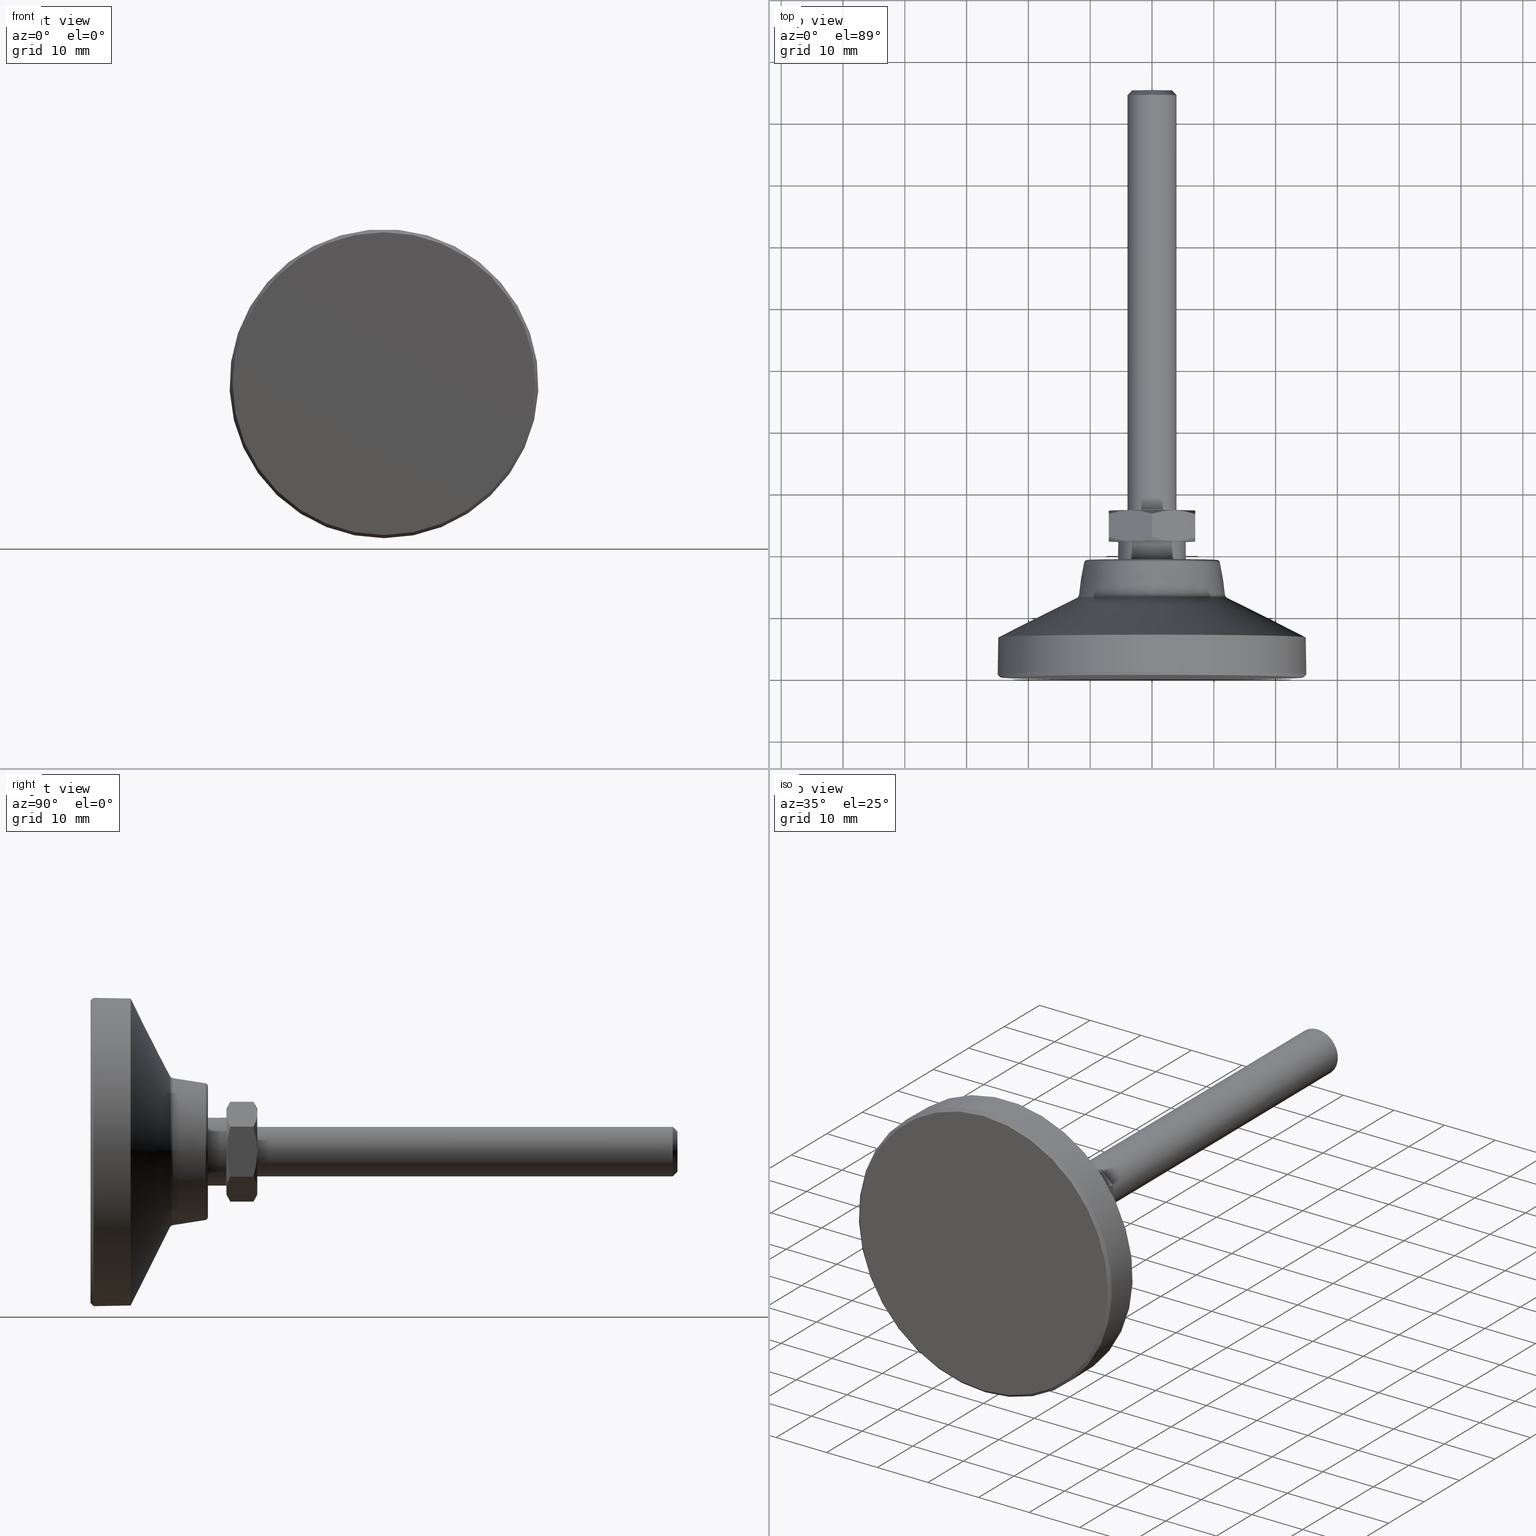
[diagram: canonical four-view strip — front | top / right | iso, engineering-drawing reading convention]
A machine part, canonical four-view strip (front | top / right | iso — engineering-drawing reading convention). The complete STEP part file that produces these views, byte-faithful:
ISO-10303-21;
HEADER;
/* Generated by software containing ST-Developer
 * from STEP Tools, Inc. (www.steptools.com) 
 */

FILE_DESCRIPTION(
/* description */ ('aaa'),
/* implementation_level */ '2;1');

FILE_NAME(
/* name */ 
'Q:\\Catalogo\\2_Accessori Dierre\\Per Download Web e catalogo cartace
o\\CATALOGO PIEDI E SOSTEGNI\\PAGINA 46\\CPDSN0000028.stp',
/* time_stamp */ '2018-11-09T11:11:46+01:00',
/* author */ ('fzagni'),
/* organization */ (''),
/* preprocessor_version */ 'ST-DEVELOPER v16.1',
/* originating_system */ 'Autodesk Inventor 2016',
/* authorisation */ '');

FILE_SCHEMA (('AUTOMOTIVE_DESIGN { 1 0 10303 214 3 1 1 }'));
ENDSEC;

DATA;
#10=MECHANICAL_DESIGN_GEOMETRIC_PRESENTATION_REPRESENTATION('',(#62,#63),
#859);
#11=DIMENSIONAL_EXPONENTS(0.,0.,0.,0.,0.,0.,0.);
#12=(
CONVERSION_BASED_UNIT('degree',#13)
NAMED_UNIT(#11)
PLANE_ANGLE_UNIT()
);
#13=PLANE_ANGLE_MEASURE_WITH_UNIT(PLANE_ANGLE_MEASURE(0.01745329252),#862);
#14=ITEM_DEFINED_TRANSFORMATION($,$,#466,#530);
#15=ITEM_DEFINED_TRANSFORMATION($,$,#486,#531);
#16=(
REPRESENTATION_RELATIONSHIP($,$,#871,#873)
REPRESENTATION_RELATIONSHIP_WITH_TRANSFORMATION(#14)
SHAPE_REPRESENTATION_RELATIONSHIP()
);
#17=(
REPRESENTATION_RELATIONSHIP($,$,#872,#873)
REPRESENTATION_RELATIONSHIP_WITH_TRANSFORMATION(#15)
SHAPE_REPRESENTATION_RELATIONSHIP()
);
#18=CONTEXT_DEPENDENT_SHAPE_REPRESENTATION(#16,#869);
#19=CONTEXT_DEPENDENT_SHAPE_REPRESENTATION(#17,#870);
#20=NEXT_ASSEMBLY_USAGE_OCCURRENCE('!958510002371!!!:1',
'!958510002371!!!:1','!958510002371!!!:1',#877,#875,
'!958510002371!!!:1');
#21=NEXT_ASSEMBLY_USAGE_OCCURRENCE('!958510002372!!!:2',
'!958510002372!!!:2','!958510002372!!!:2',#877,#876,
'!958510002372!!!:2');
#22=LINE('',#720,#28);
#23=LINE('',#729,#29);
#24=LINE('',#747,#30);
#25=LINE('',#773,#31);
#26=LINE('',#788,#32);
#27=LINE('',#797,#33);
#28=VECTOR('',#584,3.7495704353214);
#29=VECTOR('',#585,3.7495704353214);
#30=VECTOR('',#588,3.7495704353214);
#31=VECTOR('',#599,3.7495704353214);
#32=VECTOR('',#606,3.7495704353214);
#33=VECTOR('',#607,3.7495704353214);
#34=(
BOUNDED_CURVE()
B_SPLINE_CURVE(2,(#703,#704,#705),.UNSPECIFIED.,.F.,.F.)
B_SPLINE_CURVE_WITH_KNOTS((3,3),(-2.39990703391285,-1.70144723055342),
 .UNSPECIFIED.)
CURVE()
GEOMETRIC_REPRESENTATION_ITEM()
RATIONAL_B_SPLINE_CURVE((1.61721543938395,1.74230748895809,1.74230748895809))
REPRESENTATION_ITEM('')
);
#35=(
BOUNDED_CURVE()
B_SPLINE_CURVE(2,(#707,#708,#709),.UNSPECIFIED.,.F.,.F.)
B_SPLINE_CURVE_WITH_KNOTS((3,3),(1.00298742719398,1.70144723055341),
 .UNSPECIFIED.)
CURVE()
GEOMETRIC_REPRESENTATION_ITEM()
RATIONAL_B_SPLINE_CURVE((1.61721543938395,1.74230748895809,1.74230748895809))
REPRESENTATION_ITEM('')
);
#36=(
BOUNDED_CURVE()
B_SPLINE_CURVE(2,(#716,#717,#718),.UNSPECIFIED.,.F.,.F.)
B_SPLINE_CURVE_WITH_KNOTS((3,3),(-1.70144723055341,-1.00298742719398),
 .UNSPECIFIED.)
CURVE()
GEOMETRIC_REPRESENTATION_ITEM()
RATIONAL_B_SPLINE_CURVE((1.74230748895809,1.74230748895809,1.61721543938395))
REPRESENTATION_ITEM('')
);
#37=(
BOUNDED_CURVE()
B_SPLINE_CURVE(2,(#722,#723,#724),.UNSPECIFIED.,.F.,.F.)
B_SPLINE_CURVE_WITH_KNOTS((3,3),(1.00298742719398,1.70144723055341),
 .UNSPECIFIED.)
CURVE()
GEOMETRIC_REPRESENTATION_ITEM()
RATIONAL_B_SPLINE_CURVE((1.61721543938395,1.74230748895809,1.74230748895809))
REPRESENTATION_ITEM('')
);
#38=(
BOUNDED_CURVE()
B_SPLINE_CURVE(2,(#726,#727,#728),.UNSPECIFIED.,.F.,.F.)
B_SPLINE_CURVE_WITH_KNOTS((3,3),(1.70144723055341,2.39990703391284),
 .UNSPECIFIED.)
CURVE()
GEOMETRIC_REPRESENTATION_ITEM()
RATIONAL_B_SPLINE_CURVE((1.74230748895809,1.74230748895809,1.61721543938395))
REPRESENTATION_ITEM('')
);
#39=(
BOUNDED_CURVE()
B_SPLINE_CURVE(2,(#733,#734,#735),.UNSPECIFIED.,.F.,.F.)
B_SPLINE_CURVE_WITH_KNOTS((3,3),(1.00298742719398,1.70144723055341),
 .UNSPECIFIED.)
CURVE()
GEOMETRIC_REPRESENTATION_ITEM()
RATIONAL_B_SPLINE_CURVE((1.61721543938395,1.7423074889581,1.7423074889581))
REPRESENTATION_ITEM('')
);
#40=(
BOUNDED_CURVE()
B_SPLINE_CURVE(2,(#736,#737,#738),.UNSPECIFIED.,.F.,.F.)
B_SPLINE_CURVE_WITH_KNOTS((3,3),(1.70144723055341,2.39990703391285),
 .UNSPECIFIED.)
CURVE()
GEOMETRIC_REPRESENTATION_ITEM()
RATIONAL_B_SPLINE_CURVE((1.7423074889581,1.7423074889581,1.61721543938395))
REPRESENTATION_ITEM('')
);
#41=(
BOUNDED_CURVE()
B_SPLINE_CURVE(2,(#740,#741,#742),.UNSPECIFIED.,.F.,.F.)
B_SPLINE_CURVE_WITH_KNOTS((3,3),(1.00298742719398,1.70144723055341),
 .UNSPECIFIED.)
CURVE()
GEOMETRIC_REPRESENTATION_ITEM()
RATIONAL_B_SPLINE_CURVE((1.61721543938395,1.74230748895809,1.74230748895809))
REPRESENTATION_ITEM('')
);
#42=(
BOUNDED_CURVE()
B_SPLINE_CURVE(2,(#744,#745,#746),.UNSPECIFIED.,.F.,.F.)
B_SPLINE_CURVE_WITH_KNOTS((3,3),(1.70144723055341,2.39990703391284),
 .UNSPECIFIED.)
CURVE()
GEOMETRIC_REPRESENTATION_ITEM()
RATIONAL_B_SPLINE_CURVE((1.74230748895809,1.74230748895809,1.61721543938395))
REPRESENTATION_ITEM('')
);
#43=(
BOUNDED_CURVE()
B_SPLINE_CURVE(2,(#753,#754,#755),.UNSPECIFIED.,.F.,.F.)
B_SPLINE_CURVE_WITH_KNOTS((3,3),(1.70144723055341,2.39990703391284),
 .UNSPECIFIED.)
CURVE()
GEOMETRIC_REPRESENTATION_ITEM()
RATIONAL_B_SPLINE_CURVE((1.74230748895809,1.74230748895809,1.61721543938395))
REPRESENTATION_ITEM('')
);
#44=(
BOUNDED_CURVE()
B_SPLINE_CURVE(2,(#757,#758,#759),.UNSPECIFIED.,.F.,.F.)
B_SPLINE_CURVE_WITH_KNOTS((3,3),(-1.70144723055341,-1.00298742719398),
 .UNSPECIFIED.)
CURVE()
GEOMETRIC_REPRESENTATION_ITEM()
RATIONAL_B_SPLINE_CURVE((1.74230748895809,1.74230748895809,1.61721543938395))
REPRESENTATION_ITEM('')
);
#45=(
BOUNDED_CURVE()
B_SPLINE_CURVE(2,(#764,#765,#766),.UNSPECIFIED.,.F.,.F.)
B_SPLINE_CURVE_WITH_KNOTS((3,3),(1.00298742719398,1.70144723055341),
 .UNSPECIFIED.)
CURVE()
GEOMETRIC_REPRESENTATION_ITEM()
RATIONAL_B_SPLINE_CURVE((1.61721543938395,1.74230748895809,1.74230748895809))
REPRESENTATION_ITEM('')
);
#46=(
BOUNDED_CURVE()
B_SPLINE_CURVE(2,(#767,#768,#769),.UNSPECIFIED.,.F.,.F.)
B_SPLINE_CURVE_WITH_KNOTS((3,3),(1.70144723055341,2.39990703391284),
 .UNSPECIFIED.)
CURVE()
GEOMETRIC_REPRESENTATION_ITEM()
RATIONAL_B_SPLINE_CURVE((1.74230748895809,1.74230748895809,1.61721543938395))
REPRESENTATION_ITEM('')
);
#47=(
BOUNDED_CURVE()
B_SPLINE_CURVE(2,(#770,#771,#772),.UNSPECIFIED.,.F.,.F.)
B_SPLINE_CURVE_WITH_KNOTS((3,3),(1.00298742719398,1.70144723055341),
 .UNSPECIFIED.)
CURVE()
GEOMETRIC_REPRESENTATION_ITEM()
RATIONAL_B_SPLINE_CURVE((1.61721543938395,1.74230748895809,1.74230748895809))
REPRESENTATION_ITEM('')
);
#48=(
BOUNDED_CURVE()
B_SPLINE_CURVE(2,(#780,#781,#782),.UNSPECIFIED.,.F.,.F.)
B_SPLINE_CURVE_WITH_KNOTS((3,3),(1.00298742719398,1.70144723055341),
 .UNSPECIFIED.)
CURVE()
GEOMETRIC_REPRESENTATION_ITEM()
RATIONAL_B_SPLINE_CURVE((1.61721543938395,1.7423074889581,1.7423074889581))
REPRESENTATION_ITEM('')
);
#49=(
BOUNDED_CURVE()
B_SPLINE_CURVE(2,(#784,#785,#786),.UNSPECIFIED.,.F.,.F.)
B_SPLINE_CURVE_WITH_KNOTS((3,3),(1.70144723055341,2.39990703391285),
 .UNSPECIFIED.)
CURVE()
GEOMETRIC_REPRESENTATION_ITEM()
RATIONAL_B_SPLINE_CURVE((1.7423074889581,1.7423074889581,1.61721543938395))
REPRESENTATION_ITEM('')
);
#50=(
BOUNDED_CURVE()
B_SPLINE_CURVE(2,(#790,#791,#792),.UNSPECIFIED.,.F.,.F.)
B_SPLINE_CURVE_WITH_KNOTS((3,3),(1.00298742719398,1.70144723055341),
 .UNSPECIFIED.)
CURVE()
GEOMETRIC_REPRESENTATION_ITEM()
RATIONAL_B_SPLINE_CURVE((1.61721543938395,1.74230748895809,1.74230748895809))
REPRESENTATION_ITEM('')
);
#51=(
BOUNDED_CURVE()
B_SPLINE_CURVE(2,(#794,#795,#796),.UNSPECIFIED.,.F.,.F.)
B_SPLINE_CURVE_WITH_KNOTS((3,3),(1.70144723055341,2.39990703391284),
 .UNSPECIFIED.)
CURVE()
GEOMETRIC_REPRESENTATION_ITEM()
RATIONAL_B_SPLINE_CURVE((1.74230748895809,1.74230748895809,1.61721543938395))
REPRESENTATION_ITEM('')
);
#52=(
BOUNDED_CURVE()
B_SPLINE_CURVE(2,(#799,#800,#801),.UNSPECIFIED.,.F.,.F.)
B_SPLINE_CURVE_WITH_KNOTS((3,3),(-1.70144723055342,-1.00298742719398),
 .UNSPECIFIED.)
CURVE()
GEOMETRIC_REPRESENTATION_ITEM()
RATIONAL_B_SPLINE_CURVE((1.74230748895809,1.74230748895809,1.61721543938395))
REPRESENTATION_ITEM('')
);
#53=(
BOUNDED_CURVE()
B_SPLINE_CURVE(2,(#805,#806,#807),.UNSPECIFIED.,.F.,.F.)
B_SPLINE_CURVE_WITH_KNOTS((3,3),(1.00298742719398,1.70144723055341),
 .UNSPECIFIED.)
CURVE()
GEOMETRIC_REPRESENTATION_ITEM()
RATIONAL_B_SPLINE_CURVE((1.61721543938395,1.74230748895809,1.74230748895809))
REPRESENTATION_ITEM('')
);
#54=(
BOUNDED_CURVE()
B_SPLINE_CURVE(2,(#808,#809,#810),.UNSPECIFIED.,.F.,.F.)
B_SPLINE_CURVE_WITH_KNOTS((3,3),(1.70144723055341,2.39990703391285),
 .UNSPECIFIED.)
CURVE()
GEOMETRIC_REPRESENTATION_ITEM()
RATIONAL_B_SPLINE_CURVE((1.74230748895809,1.74230748895809,1.61721543938395))
REPRESENTATION_ITEM('')
);
#55=(
BOUNDED_CURVE()
B_SPLINE_CURVE(2,(#811,#812,#813),.UNSPECIFIED.,.F.,.F.)
B_SPLINE_CURVE_WITH_KNOTS((3,3),(-2.39990703391285,-1.70144723055341),
 .UNSPECIFIED.)
CURVE()
GEOMETRIC_REPRESENTATION_ITEM()
RATIONAL_B_SPLINE_CURVE((1.61721543938395,1.7423074889581,1.7423074889581))
REPRESENTATION_ITEM('')
);
#56=(
BOUNDED_CURVE()
B_SPLINE_CURVE(2,(#816,#817,#818),.UNSPECIFIED.,.F.,.F.)
B_SPLINE_CURVE_WITH_KNOTS((3,3),(1.00298742719398,1.70144723055341),
 .UNSPECIFIED.)
CURVE()
GEOMETRIC_REPRESENTATION_ITEM()
RATIONAL_B_SPLINE_CURVE((1.61721543938395,1.7423074889581,1.7423074889581))
REPRESENTATION_ITEM('')
);
#57=(
BOUNDED_CURVE()
B_SPLINE_CURVE(2,(#819,#820,#821),.UNSPECIFIED.,.F.,.F.)
B_SPLINE_CURVE_WITH_KNOTS((3,3),(1.70144723055341,2.39990703391285),
 .UNSPECIFIED.)
CURVE()
GEOMETRIC_REPRESENTATION_ITEM()
RATIONAL_B_SPLINE_CURVE((1.7423074889581,1.7423074889581,1.61721543938395))
REPRESENTATION_ITEM('')
);
#58=SHAPE_REPRESENTATION_RELATIONSHIP('SRR','None',#871,#60);
#59=SHAPE_REPRESENTATION_RELATIONSHIP('SRR','None',#872,#61);
#60=ADVANCED_BREP_SHAPE_REPRESENTATION('',(#64),#856);
#61=ADVANCED_BREP_SHAPE_REPRESENTATION('',(#65),#857);
#62=STYLED_ITEM('',(#890),#64);
#63=STYLED_ITEM('',(#891),#65);
#64=MANIFOLD_SOLID_BREP('_Levelling elements LS.A-50-14-M8x68 (0)_P1',#464);
#65=MANIFOLD_SOLID_BREP('_Levelling elements LS.A-50-14-M8x68 (0)_P2',#465);
#66=CONICAL_SURFACE('',#477,11.0668038275658,0.15707963267949);
#67=CONICAL_SURFACE('',#481,12.2943067828115,1.10544951728791);
#68=CONICAL_SURFACE('',#483,24.8952696104307,0.0174532925199432);
#69=CONICAL_SURFACE('',#485,25.,0.785398163397448);
#70=CONICAL_SURFACE('',#487,7.,1.0471975511966);
#71=CONICAL_SURFACE('',#493,11.3301270189222,1.0471975511966);
#72=CONICAL_SURFACE('',#495,11.3301270189222,1.0471975511966);
#73=CONICAL_SURFACE('',#501,7.,1.0471975511966);
#74=CONICAL_SURFACE('',#505,7.,1.0471975511966);
#75=CONICAL_SURFACE('',#512,7.,1.0471975511966);
#76=CONICAL_SURFACE('',#515,3.233,0.785398163397455);
#77=CONICAL_SURFACE('',#516,7.,1.0471975511966);
#78=CONICAL_SURFACE('',#523,11.3301270189222,1.0471975511966);
#79=CONICAL_SURFACE('',#524,11.3301270189222,1.0471975511966);
#80=CONICAL_SURFACE('',#525,11.3301270189222,1.0471975511966);
#81=CONICAL_SURFACE('',#526,7.,1.0471975511966);
#82=CONICAL_SURFACE('',#528,11.3301270189222,1.0471975511966);
#83=TOROIDAL_SURFACE('',#475,10.5729596572683,0.5);
#84=TOROIDAL_SURFACE('',#479,12.6308563530279,0.749999999999994);
#85=SPHERICAL_SURFACE('',#472,7.);
#86=SPHERICAL_SURFACE('',#498,7.);
#87=CYLINDRICAL_SURFACE('',#470,7.);
#88=CYLINDRICAL_SURFACE('',#513,4.);
#89=CYLINDRICAL_SURFACE('',#527,5.5);
#90=FACE_BOUND('',#139,.T.);
#91=FACE_BOUND('',#141,.T.);
#92=FACE_BOUND('',#145,.T.);
#93=FACE_BOUND('',#147,.T.);
#94=FACE_BOUND('',#149,.T.);
#95=FACE_BOUND('',#151,.T.);
#96=FACE_BOUND('',#153,.T.);
#97=FACE_BOUND('',#155,.T.);
#98=FACE_BOUND('',#170,.T.);
#99=FACE_BOUND('',#173,.T.);
#100=FACE_BOUND('',#175,.T.);
#101=FACE_BOUND('',#178,.T.);
#102=FACE_BOUND('',#184,.T.);
#103=FACE_OUTER_BOUND('',#138,.T.);
#104=FACE_OUTER_BOUND('',#140,.T.);
#105=FACE_OUTER_BOUND('',#142,.T.);
#106=FACE_OUTER_BOUND('',#143,.T.);
#107=FACE_OUTER_BOUND('',#144,.T.);
#108=FACE_OUTER_BOUND('',#146,.T.);
#109=FACE_OUTER_BOUND('',#148,.T.);
#110=FACE_OUTER_BOUND('',#150,.T.);
#111=FACE_OUTER_BOUND('',#152,.T.);
#112=FACE_OUTER_BOUND('',#154,.T.);
#113=FACE_OUTER_BOUND('',#156,.T.);
#114=FACE_OUTER_BOUND('',#157,.T.);
#115=FACE_OUTER_BOUND('',#158,.T.);
#116=FACE_OUTER_BOUND('',#159,.T.);
#117=FACE_OUTER_BOUND('',#160,.T.);
#118=FACE_OUTER_BOUND('',#161,.T.);
#119=FACE_OUTER_BOUND('',#162,.T.);
#120=FACE_OUTER_BOUND('',#163,.T.);
#121=FACE_OUTER_BOUND('',#164,.T.);
#122=FACE_OUTER_BOUND('',#165,.T.);
#123=FACE_OUTER_BOUND('',#166,.T.);
#124=FACE_OUTER_BOUND('',#167,.T.);
#125=FACE_OUTER_BOUND('',#168,.T.);
#126=FACE_OUTER_BOUND('',#169,.T.);
#127=FACE_OUTER_BOUND('',#171,.T.);
#128=FACE_OUTER_BOUND('',#172,.T.);
#129=FACE_OUTER_BOUND('',#174,.T.);
#130=FACE_OUTER_BOUND('',#176,.T.);
#131=FACE_OUTER_BOUND('',#177,.T.);
#132=FACE_OUTER_BOUND('',#179,.T.);
#133=FACE_OUTER_BOUND('',#180,.T.);
#134=FACE_OUTER_BOUND('',#181,.T.);
#135=FACE_OUTER_BOUND('',#182,.T.);
#136=FACE_OUTER_BOUND('',#183,.T.);
#137=FACE_OUTER_BOUND('',#185,.T.);
#138=EDGE_LOOP('',(#306));
#139=EDGE_LOOP('',(#307));
#140=EDGE_LOOP('',(#308));
#141=EDGE_LOOP('',(#309));
#142=EDGE_LOOP('',(#310));
#143=EDGE_LOOP('',(#311));
#144=EDGE_LOOP('',(#312));
#145=EDGE_LOOP('',(#313));
#146=EDGE_LOOP('',(#314));
#147=EDGE_LOOP('',(#315));
#148=EDGE_LOOP('',(#316));
#149=EDGE_LOOP('',(#317));
#150=EDGE_LOOP('',(#318));
#151=EDGE_LOOP('',(#319));
#152=EDGE_LOOP('',(#320));
#153=EDGE_LOOP('',(#321));
#154=EDGE_LOOP('',(#322));
#155=EDGE_LOOP('',(#323));
#156=EDGE_LOOP('',(#324,#325,#326));
#157=EDGE_LOOP('',(#327));
#158=EDGE_LOOP('',(#328,#329,#330,#331,#332,#333));
#159=EDGE_LOOP('',(#334,#335,#336,#337,#338,#339));
#160=EDGE_LOOP('',(#340,#341,#342));
#161=EDGE_LOOP('',(#343,#344,#345));
#162=EDGE_LOOP('',(#346,#347,#348,#349,#350,#351));
#163=EDGE_LOOP('',(#352));
#164=EDGE_LOOP('',(#353,#354,#355,#356,#357,#358));
#165=EDGE_LOOP('',(#359,#360,#361));
#166=EDGE_LOOP('',(#362,#363,#364,#365,#366,#367));
#167=EDGE_LOOP('',(#368,#369,#370,#371,#372,#373));
#168=EDGE_LOOP('',(#374,#375,#376));
#169=EDGE_LOOP('',(#377,#378,#379,#380,#381,#382));
#170=EDGE_LOOP('',(#383));
#171=EDGE_LOOP('',(#384,#385,#386));
#172=EDGE_LOOP('',(#387));
#173=EDGE_LOOP('',(#388));
#174=EDGE_LOOP('',(#389));
#175=EDGE_LOOP('',(#390));
#176=EDGE_LOOP('',(#391,#392,#393));
#177=EDGE_LOOP('',(#394,#395,#396,#397,#398,#399));
#178=EDGE_LOOP('',(#400));
#179=EDGE_LOOP('',(#401,#402,#403));
#180=EDGE_LOOP('',(#404,#405,#406));
#181=EDGE_LOOP('',(#407,#408,#409));
#182=EDGE_LOOP('',(#410,#411,#412));
#183=EDGE_LOOP('',(#413));
#184=EDGE_LOOP('',(#414));
#185=EDGE_LOOP('',(#415,#416,#417));
#186=CIRCLE('',#468,10.5729596572683);
#187=CIRCLE('',#469,7.);
#188=CIRCLE('',#471,7.);
#189=CIRCLE('',#474,24.5);
#190=CIRCLE('',#476,11.0668038275658);
#191=CIRCLE('',#478,11.8900900975816);
#192=CIRCLE('',#480,12.2943067828115);
#193=CIRCLE('',#482,24.8952696104307);
#194=CIRCLE('',#484,25.);
#195=CIRCLE('',#488,7.);
#196=CIRCLE('',#490,3.233);
#197=CIRCLE('',#494,7.);
#198=CIRCLE('',#496,7.);
#199=CIRCLE('',#499,5.5);
#200=CIRCLE('',#502,7.);
#201=CIRCLE('',#506,7.);
#202=CIRCLE('',#508,7.);
#203=CIRCLE('',#509,7.);
#204=CIRCLE('',#510,7.);
#205=CIRCLE('',#511,4.);
#206=CIRCLE('',#514,4.);
#207=CIRCLE('',#518,7.);
#208=CIRCLE('',#519,7.);
#209=CIRCLE('',#520,7.);
#210=CIRCLE('',#521,7.);
#211=CIRCLE('',#522,5.5);
#212=VERTEX_POINT('',#672);
#213=VERTEX_POINT('',#674);
#214=VERTEX_POINT('',#677);
#215=VERTEX_POINT('',#681);
#216=VERTEX_POINT('',#684);
#217=VERTEX_POINT('',#687);
#218=VERTEX_POINT('',#690);
#219=VERTEX_POINT('',#693);
#220=VERTEX_POINT('',#696);
#221=VERTEX_POINT('',#701);
#222=VERTEX_POINT('',#702);
#223=VERTEX_POINT('',#706);
#224=VERTEX_POINT('',#712);
#225=VERTEX_POINT('',#715);
#226=VERTEX_POINT('',#719);
#227=VERTEX_POINT('',#721);
#228=VERTEX_POINT('',#725);
#229=VERTEX_POINT('',#731);
#230=VERTEX_POINT('',#732);
#231=VERTEX_POINT('',#739);
#232=VERTEX_POINT('',#743);
#233=VERTEX_POINT('',#751);
#234=VERTEX_POINT('',#752);
#235=VERTEX_POINT('',#756);
#236=VERTEX_POINT('',#762);
#237=VERTEX_POINT('',#763);
#238=VERTEX_POINT('',#775);
#239=VERTEX_POINT('',#778);
#240=VERTEX_POINT('',#779);
#241=VERTEX_POINT('',#783);
#242=VERTEX_POINT('',#787);
#243=VERTEX_POINT('',#789);
#244=VERTEX_POINT('',#793);
#245=VERTEX_POINT('',#804);
#246=VERTEX_POINT('',#815);
#247=VERTEX_POINT('',#828);
#248=VERTEX_POINT('',#832);
#249=VERTEX_POINT('',#841);
#250=EDGE_CURVE('',#212,#212,#186,.T.);
#251=EDGE_CURVE('',#213,#213,#187,.F.);
#252=EDGE_CURVE('',#214,#214,#188,.T.);
#253=EDGE_CURVE('',#215,#215,#189,.T.);
#254=EDGE_CURVE('',#216,#216,#190,.T.);
#255=EDGE_CURVE('',#217,#217,#191,.T.);
#256=EDGE_CURVE('',#218,#218,#192,.T.);
#257=EDGE_CURVE('',#219,#219,#193,.T.);
#258=EDGE_CURVE('',#220,#220,#194,.T.);
#259=EDGE_CURVE('',#221,#222,#34,.T.);
#260=EDGE_CURVE('',#223,#221,#35,.F.);
#261=EDGE_CURVE('',#223,#222,#195,.T.);
#262=EDGE_CURVE('',#224,#224,#196,.T.);
#263=EDGE_CURVE('',#225,#223,#36,.F.);
#264=EDGE_CURVE('',#226,#221,#22,.T.);
#265=EDGE_CURVE('',#226,#227,#37,.T.);
#266=EDGE_CURVE('',#227,#228,#38,.T.);
#267=EDGE_CURVE('',#228,#225,#23,.T.);
#268=EDGE_CURVE('',#229,#230,#39,.T.);
#269=EDGE_CURVE('',#230,#225,#40,.T.);
#270=EDGE_CURVE('',#228,#231,#41,.T.);
#271=EDGE_CURVE('',#231,#232,#42,.T.);
#272=EDGE_CURVE('',#232,#229,#24,.T.);
#273=EDGE_CURVE('',#231,#227,#197,.T.);
#274=EDGE_CURVE('',#233,#234,#43,.F.);
#275=EDGE_CURVE('',#235,#233,#44,.T.);
#276=EDGE_CURVE('',#234,#235,#198,.T.);
#277=EDGE_CURVE('',#236,#237,#45,.T.);
#278=EDGE_CURVE('',#237,#229,#46,.T.);
#279=EDGE_CURVE('',#232,#235,#47,.T.);
#280=EDGE_CURVE('',#233,#236,#25,.T.);
#281=EDGE_CURVE('',#238,#238,#199,.T.);
#282=EDGE_CURVE('',#239,#240,#48,.T.);
#283=EDGE_CURVE('',#240,#241,#49,.T.);
#284=EDGE_CURVE('',#242,#241,#26,.T.);
#285=EDGE_CURVE('',#242,#243,#50,.T.);
#286=EDGE_CURVE('',#243,#244,#51,.T.);
#287=EDGE_CURVE('',#244,#239,#27,.T.);
#288=EDGE_CURVE('',#222,#239,#52,.T.);
#289=EDGE_CURVE('',#222,#240,#200,.T.);
#290=EDGE_CURVE('',#241,#245,#53,.T.);
#291=EDGE_CURVE('',#245,#236,#54,.T.);
#292=EDGE_CURVE('',#234,#242,#55,.F.);
#293=EDGE_CURVE('',#244,#246,#56,.T.);
#294=EDGE_CURVE('',#246,#226,#57,.T.);
#295=EDGE_CURVE('',#230,#223,#201,.T.);
#296=EDGE_CURVE('',#245,#237,#202,.T.);
#297=EDGE_CURVE('',#240,#245,#203,.T.);
#298=EDGE_CURVE('',#237,#230,#204,.T.);
#299=EDGE_CURVE('',#247,#247,#205,.T.);
#300=EDGE_CURVE('',#248,#248,#206,.T.);
#301=EDGE_CURVE('',#243,#234,#207,.T.);
#302=EDGE_CURVE('',#235,#231,#208,.T.);
#303=EDGE_CURVE('',#227,#246,#209,.T.);
#304=EDGE_CURVE('',#246,#243,#210,.T.);
#305=EDGE_CURVE('',#249,#249,#211,.T.);
#306=ORIENTED_EDGE('',*,*,#250,.F.);
#307=ORIENTED_EDGE('',*,*,#251,.F.);
#308=ORIENTED_EDGE('',*,*,#252,.T.);
#309=ORIENTED_EDGE('',*,*,#251,.T.);
#310=ORIENTED_EDGE('',*,*,#252,.F.);
#311=ORIENTED_EDGE('',*,*,#253,.T.);
#312=ORIENTED_EDGE('',*,*,#250,.T.);
#313=ORIENTED_EDGE('',*,*,#254,.F.);
#314=ORIENTED_EDGE('',*,*,#255,.F.);
#315=ORIENTED_EDGE('',*,*,#254,.T.);
#316=ORIENTED_EDGE('',*,*,#256,.F.);
#317=ORIENTED_EDGE('',*,*,#255,.T.);
#318=ORIENTED_EDGE('',*,*,#257,.F.);
#319=ORIENTED_EDGE('',*,*,#256,.T.);
#320=ORIENTED_EDGE('',*,*,#258,.F.);
#321=ORIENTED_EDGE('',*,*,#257,.T.);
#322=ORIENTED_EDGE('',*,*,#253,.F.);
#323=ORIENTED_EDGE('',*,*,#258,.T.);
#324=ORIENTED_EDGE('',*,*,#259,.F.);
#325=ORIENTED_EDGE('',*,*,#260,.F.);
#326=ORIENTED_EDGE('',*,*,#261,.T.);
#327=ORIENTED_EDGE('',*,*,#262,.F.);
#328=ORIENTED_EDGE('',*,*,#263,.T.);
#329=ORIENTED_EDGE('',*,*,#260,.T.);
#330=ORIENTED_EDGE('',*,*,#264,.F.);
#331=ORIENTED_EDGE('',*,*,#265,.T.);
#332=ORIENTED_EDGE('',*,*,#266,.T.);
#333=ORIENTED_EDGE('',*,*,#267,.T.);
#334=ORIENTED_EDGE('',*,*,#268,.T.);
#335=ORIENTED_EDGE('',*,*,#269,.T.);
#336=ORIENTED_EDGE('',*,*,#267,.F.);
#337=ORIENTED_EDGE('',*,*,#270,.T.);
#338=ORIENTED_EDGE('',*,*,#271,.T.);
#339=ORIENTED_EDGE('',*,*,#272,.T.);
#340=ORIENTED_EDGE('',*,*,#270,.F.);
#341=ORIENTED_EDGE('',*,*,#266,.F.);
#342=ORIENTED_EDGE('',*,*,#273,.F.);
#343=ORIENTED_EDGE('',*,*,#274,.F.);
#344=ORIENTED_EDGE('',*,*,#275,.F.);
#345=ORIENTED_EDGE('',*,*,#276,.F.);
#346=ORIENTED_EDGE('',*,*,#277,.T.);
#347=ORIENTED_EDGE('',*,*,#278,.T.);
#348=ORIENTED_EDGE('',*,*,#272,.F.);
#349=ORIENTED_EDGE('',*,*,#279,.T.);
#350=ORIENTED_EDGE('',*,*,#275,.T.);
#351=ORIENTED_EDGE('',*,*,#280,.T.);
#352=ORIENTED_EDGE('',*,*,#281,.T.);
#353=ORIENTED_EDGE('',*,*,#282,.T.);
#354=ORIENTED_EDGE('',*,*,#283,.T.);
#355=ORIENTED_EDGE('',*,*,#284,.F.);
#356=ORIENTED_EDGE('',*,*,#285,.T.);
#357=ORIENTED_EDGE('',*,*,#286,.T.);
#358=ORIENTED_EDGE('',*,*,#287,.T.);
#359=ORIENTED_EDGE('',*,*,#288,.F.);
#360=ORIENTED_EDGE('',*,*,#289,.T.);
#361=ORIENTED_EDGE('',*,*,#282,.F.);
#362=ORIENTED_EDGE('',*,*,#290,.T.);
#363=ORIENTED_EDGE('',*,*,#291,.T.);
#364=ORIENTED_EDGE('',*,*,#280,.F.);
#365=ORIENTED_EDGE('',*,*,#274,.T.);
#366=ORIENTED_EDGE('',*,*,#292,.T.);
#367=ORIENTED_EDGE('',*,*,#284,.T.);
#368=ORIENTED_EDGE('',*,*,#259,.T.);
#369=ORIENTED_EDGE('',*,*,#288,.T.);
#370=ORIENTED_EDGE('',*,*,#287,.F.);
#371=ORIENTED_EDGE('',*,*,#293,.T.);
#372=ORIENTED_EDGE('',*,*,#294,.T.);
#373=ORIENTED_EDGE('',*,*,#264,.T.);
#374=ORIENTED_EDGE('',*,*,#269,.F.);
#375=ORIENTED_EDGE('',*,*,#295,.T.);
#376=ORIENTED_EDGE('',*,*,#263,.F.);
#377=ORIENTED_EDGE('',*,*,#296,.F.);
#378=ORIENTED_EDGE('',*,*,#297,.F.);
#379=ORIENTED_EDGE('',*,*,#289,.F.);
#380=ORIENTED_EDGE('',*,*,#261,.F.);
#381=ORIENTED_EDGE('',*,*,#295,.F.);
#382=ORIENTED_EDGE('',*,*,#298,.F.);
#383=ORIENTED_EDGE('',*,*,#299,.T.);
#384=ORIENTED_EDGE('',*,*,#278,.F.);
#385=ORIENTED_EDGE('',*,*,#298,.T.);
#386=ORIENTED_EDGE('',*,*,#268,.F.);
#387=ORIENTED_EDGE('',*,*,#299,.F.);
#388=ORIENTED_EDGE('',*,*,#300,.T.);
#389=ORIENTED_EDGE('',*,*,#300,.F.);
#390=ORIENTED_EDGE('',*,*,#262,.T.);
#391=ORIENTED_EDGE('',*,*,#283,.F.);
#392=ORIENTED_EDGE('',*,*,#297,.T.);
#393=ORIENTED_EDGE('',*,*,#290,.F.);
#394=ORIENTED_EDGE('',*,*,#301,.T.);
#395=ORIENTED_EDGE('',*,*,#276,.T.);
#396=ORIENTED_EDGE('',*,*,#302,.T.);
#397=ORIENTED_EDGE('',*,*,#273,.T.);
#398=ORIENTED_EDGE('',*,*,#303,.T.);
#399=ORIENTED_EDGE('',*,*,#304,.T.);
#400=ORIENTED_EDGE('',*,*,#305,.F.);
#401=ORIENTED_EDGE('',*,*,#294,.F.);
#402=ORIENTED_EDGE('',*,*,#303,.F.);
#403=ORIENTED_EDGE('',*,*,#265,.F.);
#404=ORIENTED_EDGE('',*,*,#286,.F.);
#405=ORIENTED_EDGE('',*,*,#304,.F.);
#406=ORIENTED_EDGE('',*,*,#293,.F.);
#407=ORIENTED_EDGE('',*,*,#292,.F.);
#408=ORIENTED_EDGE('',*,*,#301,.F.);
#409=ORIENTED_EDGE('',*,*,#285,.F.);
#410=ORIENTED_EDGE('',*,*,#291,.F.);
#411=ORIENTED_EDGE('',*,*,#296,.T.);
#412=ORIENTED_EDGE('',*,*,#277,.F.);
#413=ORIENTED_EDGE('',*,*,#281,.F.);
#414=ORIENTED_EDGE('',*,*,#305,.T.);
#415=ORIENTED_EDGE('',*,*,#279,.F.);
#416=ORIENTED_EDGE('',*,*,#271,.F.);
#417=ORIENTED_EDGE('',*,*,#302,.F.);
#418=PLANE('',#467);
#419=PLANE('',#473);
#420=PLANE('',#489);
#421=PLANE('',#491);
#422=PLANE('',#492);
#423=PLANE('',#497);
#424=PLANE('',#500);
#425=PLANE('',#503);
#426=PLANE('',#504);
#427=PLANE('',#507);
#428=PLANE('',#517);
#429=ADVANCED_FACE('',(#103,#90),#418,.F.);
#430=ADVANCED_FACE('',(#104,#91),#87,.F.);
#431=ADVANCED_FACE('',(#105),#85,.F.);
#432=ADVANCED_FACE('',(#106),#419,.F.);
#433=ADVANCED_FACE('',(#107,#92),#83,.T.);
#434=ADVANCED_FACE('',(#108,#93),#66,.T.);
#435=ADVANCED_FACE('',(#109,#94),#84,.F.);
#436=ADVANCED_FACE('',(#110,#95),#67,.T.);
#437=ADVANCED_FACE('',(#111,#96),#68,.T.);
#438=ADVANCED_FACE('',(#112,#97),#69,.T.);
#439=ADVANCED_FACE('',(#113),#70,.T.);
#440=ADVANCED_FACE('',(#114),#420,.F.);
#441=ADVANCED_FACE('',(#115),#421,.T.);
#442=ADVANCED_FACE('',(#116),#422,.T.);
#443=ADVANCED_FACE('',(#117),#71,.T.);
#444=ADVANCED_FACE('',(#118),#72,.T.);
#445=ADVANCED_FACE('',(#119),#423,.T.);
#446=ADVANCED_FACE('',(#120),#86,.T.);
#447=ADVANCED_FACE('',(#121),#424,.T.);
#448=ADVANCED_FACE('',(#122),#73,.T.);
#449=ADVANCED_FACE('',(#123),#425,.T.);
#450=ADVANCED_FACE('',(#124),#426,.T.);
#451=ADVANCED_FACE('',(#125),#74,.T.);
#452=ADVANCED_FACE('',(#126,#98),#427,.F.);
#453=ADVANCED_FACE('',(#127),#75,.T.);
#454=ADVANCED_FACE('',(#128,#99),#88,.T.);
#455=ADVANCED_FACE('',(#129,#100),#76,.T.);
#456=ADVANCED_FACE('',(#130),#77,.T.);
#457=ADVANCED_FACE('',(#131,#101),#428,.F.);
#458=ADVANCED_FACE('',(#132),#78,.T.);
#459=ADVANCED_FACE('',(#133),#79,.T.);
#460=ADVANCED_FACE('',(#134),#80,.T.);
#461=ADVANCED_FACE('',(#135),#81,.T.);
#462=ADVANCED_FACE('',(#136,#102),#89,.T.);
#463=ADVANCED_FACE('',(#137),#82,.T.);
#464=CLOSED_SHELL('',(#429,#430,#431,#432,#433,#434,#435,#436,#437,#438));
#465=CLOSED_SHELL('',(#439,#440,#441,#442,#443,#444,#445,#446,#447,#448,
#449,#450,#451,#452,#453,#454,#455,#456,#457,#458,#459,#460,#461,#462,#463));
#466=AXIS2_PLACEMENT_3D('placement',#670,#532,#533);
#467=AXIS2_PLACEMENT_3D('',#671,#534,#535);
#468=AXIS2_PLACEMENT_3D('',#673,#536,#537);
#469=AXIS2_PLACEMENT_3D('',#675,#538,#539);
#470=AXIS2_PLACEMENT_3D('',#676,#540,#541);
#471=AXIS2_PLACEMENT_3D('',#678,#542,#543);
#472=AXIS2_PLACEMENT_3D('',#679,#544,#545);
#473=AXIS2_PLACEMENT_3D('',#680,#546,#547);
#474=AXIS2_PLACEMENT_3D('',#682,#548,#549);
#475=AXIS2_PLACEMENT_3D('',#683,#550,#551);
#476=AXIS2_PLACEMENT_3D('',#685,#552,#553);
#477=AXIS2_PLACEMENT_3D('',#686,#554,#555);
#478=AXIS2_PLACEMENT_3D('',#688,#556,#557);
#479=AXIS2_PLACEMENT_3D('',#689,#558,#559);
#480=AXIS2_PLACEMENT_3D('',#691,#560,#561);
#481=AXIS2_PLACEMENT_3D('',#692,#562,#563);
#482=AXIS2_PLACEMENT_3D('',#694,#564,#565);
#483=AXIS2_PLACEMENT_3D('',#695,#566,#567);
#484=AXIS2_PLACEMENT_3D('',#697,#568,#569);
#485=AXIS2_PLACEMENT_3D('',#698,#570,#571);
#486=AXIS2_PLACEMENT_3D('placement',#699,#572,#573);
#487=AXIS2_PLACEMENT_3D('',#700,#574,#575);
#488=AXIS2_PLACEMENT_3D('',#710,#576,#577);
#489=AXIS2_PLACEMENT_3D('',#711,#578,#579);
#490=AXIS2_PLACEMENT_3D('',#713,#580,#581);
#491=AXIS2_PLACEMENT_3D('',#714,#582,#583);
#492=AXIS2_PLACEMENT_3D('',#730,#586,#587);
#493=AXIS2_PLACEMENT_3D('',#748,#589,#590);
#494=AXIS2_PLACEMENT_3D('',#749,#591,#592);
#495=AXIS2_PLACEMENT_3D('',#750,#593,#594);
#496=AXIS2_PLACEMENT_3D('',#760,#595,#596);
#497=AXIS2_PLACEMENT_3D('',#761,#597,#598);
#498=AXIS2_PLACEMENT_3D('',#774,#600,#601);
#499=AXIS2_PLACEMENT_3D('',#776,#602,#603);
#500=AXIS2_PLACEMENT_3D('',#777,#604,#605);
#501=AXIS2_PLACEMENT_3D('',#798,#608,#609);
#502=AXIS2_PLACEMENT_3D('',#802,#610,#611);
#503=AXIS2_PLACEMENT_3D('',#803,#612,#613);
#504=AXIS2_PLACEMENT_3D('',#814,#614,#615);
#505=AXIS2_PLACEMENT_3D('',#822,#616,#617);
#506=AXIS2_PLACEMENT_3D('',#823,#618,#619);
#507=AXIS2_PLACEMENT_3D('',#824,#620,#621);
#508=AXIS2_PLACEMENT_3D('',#825,#622,#623);
#509=AXIS2_PLACEMENT_3D('',#826,#624,#625);
#510=AXIS2_PLACEMENT_3D('',#827,#626,#627);
#511=AXIS2_PLACEMENT_3D('',#829,#628,#629);
#512=AXIS2_PLACEMENT_3D('',#830,#630,#631);
#513=AXIS2_PLACEMENT_3D('',#831,#632,#633);
#514=AXIS2_PLACEMENT_3D('',#833,#634,#635);
#515=AXIS2_PLACEMENT_3D('',#834,#636,#637);
#516=AXIS2_PLACEMENT_3D('',#835,#638,#639);
#517=AXIS2_PLACEMENT_3D('',#836,#640,#641);
#518=AXIS2_PLACEMENT_3D('',#837,#642,#643);
#519=AXIS2_PLACEMENT_3D('',#838,#644,#645);
#520=AXIS2_PLACEMENT_3D('',#839,#646,#647);
#521=AXIS2_PLACEMENT_3D('',#840,#648,#649);
#522=AXIS2_PLACEMENT_3D('',#842,#650,#651);
#523=AXIS2_PLACEMENT_3D('',#843,#652,#653);
#524=AXIS2_PLACEMENT_3D('',#844,#654,#655);
#525=AXIS2_PLACEMENT_3D('',#845,#656,#657);
#526=AXIS2_PLACEMENT_3D('',#846,#658,#659);
#527=AXIS2_PLACEMENT_3D('',#847,#660,#661);
#528=AXIS2_PLACEMENT_3D('',#848,#662,#663);
#529=AXIS2_PLACEMENT_3D('placement',#849,#664,#665);
#530=AXIS2_PLACEMENT_3D('',#850,#666,#667);
#531=AXIS2_PLACEMENT_3D('',#851,#668,#669);
#532=DIRECTION('axis',(0.,0.,1.));
#533=DIRECTION('refdir',(1.,0.,0.));
#534=DIRECTION('center_axis',(0.,-1.,0.));
#535=DIRECTION('ref_axis',(0.,0.,-1.));
#536=DIRECTION('center_axis',(0.,-1.,0.));
#537=DIRECTION('ref_axis',(0.,0.,-1.));
#538=DIRECTION('center_axis',(0.,-1.,0.));
#539=DIRECTION('ref_axis',(0.,0.,-1.));
#540=DIRECTION('center_axis',(0.,1.,0.));
#541=DIRECTION('ref_axis',(0.,0.,-1.));
#542=DIRECTION('center_axis',(0.,-1.,0.));
#543=DIRECTION('ref_axis',(0.,0.,-1.));
#544=DIRECTION('center_axis',(-6.12323399573676E-17,-1.,0.));
#545=DIRECTION('ref_axis',(-1.,0.,0.));
#546=DIRECTION('center_axis',(0.,1.,0.));
#547=DIRECTION('ref_axis',(0.,0.,1.));
#548=DIRECTION('center_axis',(0.,-1.,0.));
#549=DIRECTION('ref_axis',(0.,0.,-1.));
#550=DIRECTION('center_axis',(0.,-1.,0.));
#551=DIRECTION('ref_axis',(0.,0.,-1.));
#552=DIRECTION('center_axis',(0.,-1.,0.));
#553=DIRECTION('ref_axis',(0.,0.,-1.));
#554=DIRECTION('center_axis',(0.,-1.,0.));
#555=DIRECTION('ref_axis',(0.,0.,-1.));
#556=DIRECTION('center_axis',(0.,-1.,0.));
#557=DIRECTION('ref_axis',(0.,0.,-1.));
#558=DIRECTION('center_axis',(0.,-1.,0.));
#559=DIRECTION('ref_axis',(0.,0.,-1.));
#560=DIRECTION('center_axis',(0.,-1.,0.));
#561=DIRECTION('ref_axis',(0.,0.,-1.));
#562=DIRECTION('center_axis',(0.,-1.,0.));
#563=DIRECTION('ref_axis',(0.,0.,-1.));
#564=DIRECTION('center_axis',(0.,-1.,0.));
#565=DIRECTION('ref_axis',(0.,0.,-1.));
#566=DIRECTION('center_axis',(0.,-1.,0.));
#567=DIRECTION('ref_axis',(0.,0.,-1.));
#568=DIRECTION('center_axis',(0.,-1.,0.));
#569=DIRECTION('ref_axis',(0.,0.,-1.));
#570=DIRECTION('center_axis',(0.,1.,0.));
#571=DIRECTION('ref_axis',(0.,0.,1.));
#572=DIRECTION('axis',(0.,0.,1.));
#573=DIRECTION('refdir',(1.,0.,0.));
#574=DIRECTION('center_axis',(0.,-1.,0.));
#575=DIRECTION('ref_axis',(0.,0.,-1.));
#576=DIRECTION('center_axis',(0.,-1.,0.));
#577=DIRECTION('ref_axis',(0.,0.,-1.));
#578=DIRECTION('center_axis',(0.,-1.,0.));
#579=DIRECTION('ref_axis',(0.,0.,-1.));
#580=DIRECTION('center_axis',(0.,-1.,0.));
#581=DIRECTION('ref_axis',(0.,0.,-1.));
#582=DIRECTION('center_axis',(-1.,0.,0.));
#583=DIRECTION('ref_axis',(0.,0.,1.));
#584=DIRECTION('',(0.,1.,0.));
#585=DIRECTION('',(0.,1.,0.));
#586=DIRECTION('center_axis',(-0.5,0.,0.866025403784439));
#587=DIRECTION('ref_axis',(0.866025403784439,0.,0.5));
#588=DIRECTION('',(0.,1.,0.));
#589=DIRECTION('center_axis',(0.,1.,0.));
#590=DIRECTION('ref_axis',(0.,0.,1.));
#591=DIRECTION('center_axis',(0.,-1.,0.));
#592=DIRECTION('ref_axis',(0.,0.,-1.));
#593=DIRECTION('center_axis',(0.,1.,0.));
#594=DIRECTION('ref_axis',(0.,0.,1.));
#595=DIRECTION('center_axis',(0.,-1.,0.));
#596=DIRECTION('ref_axis',(0.,0.,-1.));
#597=DIRECTION('center_axis',(0.5,0.,0.866025403784439));
#598=DIRECTION('ref_axis',(0.866025403784439,0.,-0.5));
#599=DIRECTION('',(0.,1.,0.));
#600=DIRECTION('center_axis',(-6.12323399573677E-17,-1.,0.));
#601=DIRECTION('ref_axis',(-1.,0.,0.));
#602=DIRECTION('center_axis',(0.,-1.,0.));
#603=DIRECTION('ref_axis',(0.,0.,-1.));
#604=DIRECTION('center_axis',(0.5,0.,-0.866025403784439));
#605=DIRECTION('ref_axis',(-0.866025403784439,0.,-0.5));
#606=DIRECTION('',(0.,1.,0.));
#607=DIRECTION('',(0.,1.,0.));
#608=DIRECTION('center_axis',(0.,-1.,0.));
#609=DIRECTION('ref_axis',(0.,0.,-1.));
#610=DIRECTION('center_axis',(0.,-1.,0.));
#611=DIRECTION('ref_axis',(0.,0.,-1.));
#612=DIRECTION('center_axis',(1.,0.,0.));
#613=DIRECTION('ref_axis',(0.,0.,-1.));
#614=DIRECTION('center_axis',(-0.5,0.,-0.866025403784439));
#615=DIRECTION('ref_axis',(-0.866025403784439,0.,0.5));
#616=DIRECTION('center_axis',(0.,-1.,0.));
#617=DIRECTION('ref_axis',(0.,0.,-1.));
#618=DIRECTION('center_axis',(0.,-1.,0.));
#619=DIRECTION('ref_axis',(0.,0.,-1.));
#620=DIRECTION('center_axis',(0.,-1.,0.));
#621=DIRECTION('ref_axis',(0.,0.,-1.));
#622=DIRECTION('center_axis',(0.,-1.,0.));
#623=DIRECTION('ref_axis',(0.,0.,-1.));
#624=DIRECTION('center_axis',(0.,-1.,0.));
#625=DIRECTION('ref_axis',(0.,0.,-1.));
#626=DIRECTION('center_axis',(0.,-1.,0.));
#627=DIRECTION('ref_axis',(0.,0.,-1.));
#628=DIRECTION('center_axis',(0.,-1.,0.));
#629=DIRECTION('ref_axis',(0.,0.,-1.));
#630=DIRECTION('center_axis',(0.,-1.,0.));
#631=DIRECTION('ref_axis',(0.,0.,-1.));
#632=DIRECTION('center_axis',(0.,1.,0.));
#633=DIRECTION('ref_axis',(0.,0.,-1.));
#634=DIRECTION('center_axis',(0.,-1.,0.));
#635=DIRECTION('ref_axis',(0.,0.,-1.));
#636=DIRECTION('center_axis',(0.,-1.,0.));
#637=DIRECTION('ref_axis',(0.,0.,-1.));
#638=DIRECTION('center_axis',(0.,-1.,0.));
#639=DIRECTION('ref_axis',(0.,0.,-1.));
#640=DIRECTION('center_axis',(0.,1.,0.));
#641=DIRECTION('ref_axis',(0.,0.,1.));
#642=DIRECTION('center_axis',(0.,-1.,0.));
#643=DIRECTION('ref_axis',(0.,0.,-1.));
#644=DIRECTION('center_axis',(0.,-1.,0.));
#645=DIRECTION('ref_axis',(0.,0.,-1.));
#646=DIRECTION('center_axis',(0.,-1.,0.));
#647=DIRECTION('ref_axis',(0.,0.,-1.));
#648=DIRECTION('center_axis',(0.,-1.,0.));
#649=DIRECTION('ref_axis',(0.,0.,-1.));
#650=DIRECTION('center_axis',(0.,-1.,0.));
#651=DIRECTION('ref_axis',(0.,0.,-1.));
#652=DIRECTION('center_axis',(0.,1.,0.));
#653=DIRECTION('ref_axis',(0.,0.,1.));
#654=DIRECTION('center_axis',(0.,1.,0.));
#655=DIRECTION('ref_axis',(0.,0.,1.));
#656=DIRECTION('center_axis',(0.,1.,0.));
#657=DIRECTION('ref_axis',(0.,0.,1.));
#658=DIRECTION('center_axis',(0.,-1.,0.));
#659=DIRECTION('ref_axis',(0.,0.,-1.));
#660=DIRECTION('center_axis',(0.,1.,0.));
#661=DIRECTION('ref_axis',(0.,0.,-1.));
#662=DIRECTION('center_axis',(0.,1.,0.));
#663=DIRECTION('ref_axis',(0.,0.,1.));
#664=DIRECTION('axis',(0.,0.,1.));
#665=DIRECTION('refdir',(1.,0.,0.));
#666=DIRECTION('',(0.,0.,1.));
#667=DIRECTION('',(1.,0.,0.));
#668=DIRECTION('',(0.,0.,1.));
#669=DIRECTION('',(1.,0.,0.));
#670=CARTESIAN_POINT('',(0.,0.,0.));
#671=CARTESIAN_POINT('Origin',(0.,19.,0.));
#672=CARTESIAN_POINT('',(0.,19.,-10.5729596572683));
#673=CARTESIAN_POINT('Origin',(0.,19.,0.));
#674=CARTESIAN_POINT('',(0.,19.,-7.));
#675=CARTESIAN_POINT('Origin',(0.,19.,0.));
#676=CARTESIAN_POINT('Origin',(0.,7.,0.));
#677=CARTESIAN_POINT('',(0.,14.,-7.));
#678=CARTESIAN_POINT('Origin',(0.,14.,0.));
#679=CARTESIAN_POINT('Origin',(-1.73472347597681E-15,14.,0.));
#680=CARTESIAN_POINT('Origin',(24.5,0.,0.));
#681=CARTESIAN_POINT('',(0.,0.,-24.5));
#682=CARTESIAN_POINT('Origin',(0.,0.,0.));
#683=CARTESIAN_POINT('Origin',(0.,18.5,0.));
#684=CARTESIAN_POINT('',(0.,18.5782172325201,-11.0668038275658));
#685=CARTESIAN_POINT('Origin',(0.,18.5782172325201,0.));
#686=CARTESIAN_POINT('Origin',(0.,18.5782172325201,0.));
#687=CARTESIAN_POINT('',(0.,13.3801922981972,-11.8900900975816));
#688=CARTESIAN_POINT('Origin',(0.,13.3801922981972,0.));
#689=CARTESIAN_POINT('Origin',(0.,13.4975181469774,0.));
#690=CARTESIAN_POINT('',(0.,12.8272686510528,-12.2943067828115));
#691=CARTESIAN_POINT('Origin',(0.,12.8272686510528,0.));
#692=CARTESIAN_POINT('Origin',(0.,12.8272686510528,0.));
#693=CARTESIAN_POINT('',(0.,6.5,-24.8952696104307));
#694=CARTESIAN_POINT('Origin',(0.,6.5,0.));
#695=CARTESIAN_POINT('Origin',(0.,6.5,0.));
#696=CARTESIAN_POINT('',(0.,0.5,-25.));
#697=CARTESIAN_POINT('Origin',(0.,0.5,0.));
#698=CARTESIAN_POINT('Origin',(0.,0.5,0.));
#699=CARTESIAN_POINT('',(0.,0.,0.));
#700=CARTESIAN_POINT('Origin',(0.,27.,0.));
#701=CARTESIAN_POINT('',(-7.,26.3747852176607,-4.04145188432738));
#702=CARTESIAN_POINT('',(-3.5,27.,-6.06217782649107));
#703=CARTESIAN_POINT('Ctrl Pts',(-7.00000000000262,26.3747852176598,-4.04145188432587));
#704=CARTESIAN_POINT('Ctrl Pts',(-5.12435565298322,27.,-5.12435565298152));
#705=CARTESIAN_POINT('Ctrl Pts',(-3.50000000000004,27.,-6.06217782649105));
#706=CARTESIAN_POINT('',(-7.,27.,0.));
#707=CARTESIAN_POINT('Ctrl Pts',(-7.,26.3747852176598,-4.0414518843304));
#708=CARTESIAN_POINT('Ctrl Pts',(-7.,27.,-1.87564434701908));
#709=CARTESIAN_POINT('Ctrl Pts',(-7.,27.,-2.09006248543887E-14));
#710=CARTESIAN_POINT('Origin',(0.,27.,0.));
#711=CARTESIAN_POINT('Origin',(0.,95.,0.));
#712=CARTESIAN_POINT('',(0.,95.,-3.233));
#713=CARTESIAN_POINT('Origin',(0.,95.,0.));
#714=CARTESIAN_POINT('Origin',(-7.,21.9,-4.04145188432738));
#715=CARTESIAN_POINT('',(-7.,26.3747852176607,4.04145188432738));
#716=CARTESIAN_POINT('Ctrl Pts',(-7.,27.,2.09006248543887E-14));
#717=CARTESIAN_POINT('Ctrl Pts',(-7.,27.,1.87564434701908));
#718=CARTESIAN_POINT('Ctrl Pts',(-7.,26.3747852176598,4.0414518843304));
#719=CARTESIAN_POINT('',(-7.,22.6252147823393,-4.04145188432738));
#720=CARTESIAN_POINT('',(-7.,21.9,-4.04145188432738));
#721=CARTESIAN_POINT('',(-7.,22.,0.));
#722=CARTESIAN_POINT('Ctrl Pts',(-7.,22.6252147823402,-4.04145188433039));
#723=CARTESIAN_POINT('Ctrl Pts',(-7.,22.,-1.87564434701907));
#724=CARTESIAN_POINT('Ctrl Pts',(-7.,22.,-4.58794204120728E-15));
#725=CARTESIAN_POINT('',(-7.,22.6252147823393,4.04145188432738));
#726=CARTESIAN_POINT('Ctrl Pts',(-7.,22.,-4.58794204120728E-15));
#727=CARTESIAN_POINT('Ctrl Pts',(-7.,22.,1.87564434701907));
#728=CARTESIAN_POINT('Ctrl Pts',(-7.,22.6252147823402,4.04145188433041));
#729=CARTESIAN_POINT('',(-7.,21.9,4.04145188432738));
#730=CARTESIAN_POINT('Origin',(-7.,21.9,4.04145188432738));
#731=CARTESIAN_POINT('',(0.,26.3747852176607,8.08290376865476));
#732=CARTESIAN_POINT('',(-3.5,27.,6.06217782649107));
#733=CARTESIAN_POINT('Ctrl Pts',(2.61859650977818E-12,26.3747852176598,
8.08290376865627));
#734=CARTESIAN_POINT('Ctrl Pts',(-1.87564434701681,27.,7.00000000000061));
#735=CARTESIAN_POINT('Ctrl Pts',(-3.5,27.,6.06217782649107));
#736=CARTESIAN_POINT('Ctrl Pts',(-3.5,27.,6.06217782649107));
#737=CARTESIAN_POINT('Ctrl Pts',(-5.1243556529832,27.,5.12435565298153));
#738=CARTESIAN_POINT('Ctrl Pts',(-7.00000000000263,26.3747852176598,4.04145188432586));
#739=CARTESIAN_POINT('',(-3.5,22.,6.06217782649107));
#740=CARTESIAN_POINT('Ctrl Pts',(-7.00000000000261,22.6252147823402,4.04145188432587));
#741=CARTESIAN_POINT('Ctrl Pts',(-5.12435565298319,22.,5.12435565298154));
#742=CARTESIAN_POINT('Ctrl Pts',(-3.49999999999999,22.,6.06217782649107));
#743=CARTESIAN_POINT('',(0.,22.6252147823393,8.08290376865476));
#744=CARTESIAN_POINT('Ctrl Pts',(-3.49999999999999,22.,6.06217782649107));
#745=CARTESIAN_POINT('Ctrl Pts',(-1.8756443470168,22.,7.00000000000061));
#746=CARTESIAN_POINT('Ctrl Pts',(2.62299012808318E-12,22.6252147823402,
8.08290376865627));
#747=CARTESIAN_POINT('',(0.,21.9,8.08290376865476));
#748=CARTESIAN_POINT('Origin',(0.,24.5,0.));
#749=CARTESIAN_POINT('Origin',(0.,22.,0.));
#750=CARTESIAN_POINT('Origin',(0.,24.5,0.));
#751=CARTESIAN_POINT('',(7.,22.6252147823393,4.04145188432738));
#752=CARTESIAN_POINT('',(7.,22.,0.));
#753=CARTESIAN_POINT('Ctrl Pts',(7.,22.,-4.58794204120728E-15));
#754=CARTESIAN_POINT('Ctrl Pts',(7.,22.,1.87564434701907));
#755=CARTESIAN_POINT('Ctrl Pts',(7.,22.6252147823402,4.04145188433041));
#756=CARTESIAN_POINT('',(3.5,22.,6.06217782649107));
#757=CARTESIAN_POINT('Ctrl Pts',(3.5,22.,6.06217782649107));
#758=CARTESIAN_POINT('Ctrl Pts',(5.12435565298319,22.,5.12435565298154));
#759=CARTESIAN_POINT('Ctrl Pts',(7.00000000000261,22.6252147823402,4.04145188432588));
#760=CARTESIAN_POINT('Origin',(0.,22.,0.));
#761=CARTESIAN_POINT('Origin',(0.,21.9,8.08290376865476));
#762=CARTESIAN_POINT('',(7.,26.3747852176607,4.04145188432738));
#763=CARTESIAN_POINT('',(3.5,27.,6.06217782649107));
#764=CARTESIAN_POINT('Ctrl Pts',(7.00000000000261,26.3747852176598,4.04145188432587));
#765=CARTESIAN_POINT('Ctrl Pts',(5.1243556529832,27.,5.12435565298153));
#766=CARTESIAN_POINT('Ctrl Pts',(3.50000000000001,27.,6.06217782649107));
#767=CARTESIAN_POINT('Ctrl Pts',(3.50000000000001,27.,6.06217782649107));
#768=CARTESIAN_POINT('Ctrl Pts',(1.87564434701682,27.,7.0000000000006));
#769=CARTESIAN_POINT('Ctrl Pts',(-2.59745222168538E-12,26.3747852176599,
8.08290376865626));
#770=CARTESIAN_POINT('Ctrl Pts',(-2.608985469736E-12,22.6252147823402,8.08290376865627));
#771=CARTESIAN_POINT('Ctrl Pts',(1.87564434701681,22.,7.00000000000061));
#772=CARTESIAN_POINT('Ctrl Pts',(3.5,22.,6.06217782649107));
#773=CARTESIAN_POINT('',(7.,21.9,4.04145188432738));
#774=CARTESIAN_POINT('Origin',(3.46944695195361E-15,14.,0.));
#775=CARTESIAN_POINT('',(0.,18.3301270189222,-5.5));
#776=CARTESIAN_POINT('Origin',(0.,18.3301270189222,0.));
#777=CARTESIAN_POINT('Origin',(7.,21.9,-4.04145188432738));
#778=CARTESIAN_POINT('',(0.,26.3747852176607,-8.08290376865476));
#779=CARTESIAN_POINT('',(3.5,27.,-6.06217782649107));
#780=CARTESIAN_POINT('Ctrl Pts',(-2.61859650977818E-12,26.3747852176598,
-8.08290376865627));
#781=CARTESIAN_POINT('Ctrl Pts',(1.87564434701681,27.,-7.00000000000061));
#782=CARTESIAN_POINT('Ctrl Pts',(3.5,27.,-6.06217782649107));
#783=CARTESIAN_POINT('',(7.,26.3747852176607,-4.04145188432738));
#784=CARTESIAN_POINT('Ctrl Pts',(3.5,27.,-6.06217782649107));
#785=CARTESIAN_POINT('Ctrl Pts',(5.1243556529832,27.,-5.12435565298153));
#786=CARTESIAN_POINT('Ctrl Pts',(7.00000000000263,26.3747852176598,-4.04145188432586));
#787=CARTESIAN_POINT('',(7.,22.6252147823393,-4.04145188432738));
#788=CARTESIAN_POINT('',(7.,21.9,-4.04145188432738));
#789=CARTESIAN_POINT('',(3.5,22.,-6.06217782649107));
#790=CARTESIAN_POINT('Ctrl Pts',(7.00000000000261,22.6252147823402,-4.04145188432587));
#791=CARTESIAN_POINT('Ctrl Pts',(5.12435565298319,22.,-5.12435565298154));
#792=CARTESIAN_POINT('Ctrl Pts',(3.49999999999999,22.,-6.06217782649107));
#793=CARTESIAN_POINT('',(0.,22.6252147823393,-8.08290376865476));
#794=CARTESIAN_POINT('Ctrl Pts',(3.49999999999999,22.,-6.06217782649107));
#795=CARTESIAN_POINT('Ctrl Pts',(1.8756443470168,22.,-7.00000000000061));
#796=CARTESIAN_POINT('Ctrl Pts',(-2.62299012808318E-12,22.6252147823402,
-8.08290376865627));
#797=CARTESIAN_POINT('',(0.,21.9,-8.08290376865476));
#798=CARTESIAN_POINT('Origin',(0.,27.,0.));
#799=CARTESIAN_POINT('Ctrl Pts',(-3.50000000000004,27.,-6.06217782649105));
#800=CARTESIAN_POINT('Ctrl Pts',(-1.87564434701683,27.,-7.0000000000006));
#801=CARTESIAN_POINT('Ctrl Pts',(2.61612509948162E-12,26.3747852176598,
-8.08290376865627));
#802=CARTESIAN_POINT('Origin',(0.,27.,0.));
#803=CARTESIAN_POINT('Origin',(7.,21.9,4.04145188432738));
#804=CARTESIAN_POINT('',(7.,27.,-4.18096279767136E-26));
#805=CARTESIAN_POINT('Ctrl Pts',(7.,26.3747852176598,-4.0414518843304));
#806=CARTESIAN_POINT('Ctrl Pts',(7.,27.,-1.87564434701908));
#807=CARTESIAN_POINT('Ctrl Pts',(7.,27.,-2.09006248543887E-14));
#808=CARTESIAN_POINT('Ctrl Pts',(7.,27.,-2.09006248543887E-14));
#809=CARTESIAN_POINT('Ctrl Pts',(7.,27.,1.87564434701907));
#810=CARTESIAN_POINT('Ctrl Pts',(7.,26.3747852176598,4.04145188433042));
#811=CARTESIAN_POINT('Ctrl Pts',(7.,22.6252147823402,-4.0414518843304));
#812=CARTESIAN_POINT('Ctrl Pts',(7.,22.,-1.87564434701907));
#813=CARTESIAN_POINT('Ctrl Pts',(7.,22.,7.64657006867879E-15));
#814=CARTESIAN_POINT('Origin',(0.,21.9,-8.08290376865476));
#815=CARTESIAN_POINT('',(-3.5,22.,-6.06217782649107));
#816=CARTESIAN_POINT('Ctrl Pts',(2.61337908804099E-12,22.6252147823402,
-8.08290376865627));
#817=CARTESIAN_POINT('Ctrl Pts',(-1.87564434701681,22.,-7.00000000000061));
#818=CARTESIAN_POINT('Ctrl Pts',(-3.5,22.,-6.06217782649107));
#819=CARTESIAN_POINT('Ctrl Pts',(-3.5,22.,-6.06217782649107));
#820=CARTESIAN_POINT('Ctrl Pts',(-5.12435565298319,22.,-5.12435565298153));
#821=CARTESIAN_POINT('Ctrl Pts',(-7.00000000000262,22.6252147823402,-4.04145188432587));
#822=CARTESIAN_POINT('Origin',(0.,27.,0.));
#823=CARTESIAN_POINT('Origin',(0.,27.,0.));
#824=CARTESIAN_POINT('Origin',(4.,27.,0.));
#825=CARTESIAN_POINT('Origin',(0.,27.,0.));
#826=CARTESIAN_POINT('Origin',(0.,27.,0.));
#827=CARTESIAN_POINT('Origin',(0.,27.,0.));
#828=CARTESIAN_POINT('',(0.,27.,-4.));
#829=CARTESIAN_POINT('Origin',(0.,27.,0.));
#830=CARTESIAN_POINT('Origin',(0.,27.,0.));
#831=CARTESIAN_POINT('Origin',(0.,0.,0.));
#832=CARTESIAN_POINT('',(0.,94.233,-4.));
#833=CARTESIAN_POINT('Origin',(0.,94.233,0.));
#834=CARTESIAN_POINT('Origin',(0.,95.,0.));
#835=CARTESIAN_POINT('Origin',(0.,27.,0.));
#836=CARTESIAN_POINT('Origin',(7.,22.,0.));
#837=CARTESIAN_POINT('Origin',(0.,22.,0.));
#838=CARTESIAN_POINT('Origin',(0.,22.,0.));
#839=CARTESIAN_POINT('Origin',(0.,22.,0.));
#840=CARTESIAN_POINT('Origin',(0.,22.,0.));
#841=CARTESIAN_POINT('',(0.,22.,-5.5));
#842=CARTESIAN_POINT('Origin',(0.,22.,0.));
#843=CARTESIAN_POINT('Origin',(0.,24.5,0.));
#844=CARTESIAN_POINT('Origin',(0.,24.5,0.));
#845=CARTESIAN_POINT('Origin',(0.,24.5,0.));
#846=CARTESIAN_POINT('Origin',(0.,27.,0.));
#847=CARTESIAN_POINT('Origin',(0.,0.,0.));
#848=CARTESIAN_POINT('Origin',(0.,24.5,0.));
#849=CARTESIAN_POINT('',(0.,0.,0.));
#850=CARTESIAN_POINT('',(0.,0.,0.));
#851=CARTESIAN_POINT('',(0.,0.,0.));
#852=UNCERTAINTY_MEASURE_WITH_UNIT(LENGTH_MEASURE(0.01),#860,
'DISTANCE_ACCURACY_VALUE',
'Maximum model space distance between geometric entities at asserted c
onnectivities');
#853=UNCERTAINTY_MEASURE_WITH_UNIT(LENGTH_MEASURE(0.01),#860,
'DISTANCE_ACCURACY_VALUE',
'Maximum model space distance between geometric entities at asserted c
onnectivities');
#854=UNCERTAINTY_MEASURE_WITH_UNIT(LENGTH_MEASURE(0.01),#860,
'DISTANCE_ACCURACY_VALUE',
'Maximum model space distance between geometric entities at asserted c
onnectivities');
#855=UNCERTAINTY_MEASURE_WITH_UNIT(LENGTH_MEASURE(1.E-6),#860,
'DISTANCE_ACCURACY_VALUE',
'Maximum model space distance between geometric entities at asserted c
onnectivities');
#856=(
GEOMETRIC_REPRESENTATION_CONTEXT(3)
GLOBAL_UNCERTAINTY_ASSIGNED_CONTEXT((#852))
GLOBAL_UNIT_ASSIGNED_CONTEXT((#860,#862,#861))
REPRESENTATION_CONTEXT('','3D')
);
#857=(
GEOMETRIC_REPRESENTATION_CONTEXT(3)
GLOBAL_UNCERTAINTY_ASSIGNED_CONTEXT((#853))
GLOBAL_UNIT_ASSIGNED_CONTEXT((#860,#862,#861))
REPRESENTATION_CONTEXT('','3D')
);
#858=(
GEOMETRIC_REPRESENTATION_CONTEXT(3)
GLOBAL_UNCERTAINTY_ASSIGNED_CONTEXT((#854))
GLOBAL_UNIT_ASSIGNED_CONTEXT((#860,#862,#861))
REPRESENTATION_CONTEXT('','3D')
);
#859=(
GEOMETRIC_REPRESENTATION_CONTEXT(3)
GLOBAL_UNCERTAINTY_ASSIGNED_CONTEXT((#855))
GLOBAL_UNIT_ASSIGNED_CONTEXT((#860,#12,#861))
REPRESENTATION_CONTEXT('','3D')
);
#860=(
LENGTH_UNIT()
NAMED_UNIT(*)
SI_UNIT(.MILLI.,.METRE.)
);
#861=(
NAMED_UNIT(*)
SI_UNIT($,.STERADIAN.)
SOLID_ANGLE_UNIT()
);
#862=(
NAMED_UNIT(*)
PLANE_ANGLE_UNIT()
SI_UNIT($,.RADIAN.)
);
#863=SHAPE_DEFINITION_REPRESENTATION(#866,#871);
#864=SHAPE_DEFINITION_REPRESENTATION(#867,#872);
#865=SHAPE_DEFINITION_REPRESENTATION(#868,#873);
#866=PRODUCT_DEFINITION_SHAPE('',$,#875);
#867=PRODUCT_DEFINITION_SHAPE('',$,#876);
#868=PRODUCT_DEFINITION_SHAPE('',$,#877);
#869=PRODUCT_DEFINITION_SHAPE($,$,#20);
#870=PRODUCT_DEFINITION_SHAPE($,$,#21);
#871=SHAPE_REPRESENTATION('',(#466),#856);
#872=SHAPE_REPRESENTATION('',(#486),#857);
#873=SHAPE_REPRESENTATION('',(#529,#530,#531),#858);
#874=PRODUCT_DEFINITION_CONTEXT('part definition',#885,'design');
#875=PRODUCT_DEFINITION('958510002371','958510002371',#878,#874);
#876=PRODUCT_DEFINITION('958510002372','958510002372',#879,#874);
#877=PRODUCT_DEFINITION('16.010.00','16.010.00',#880,#874);
#878=PRODUCT_DEFINITION_FORMATION('','A',#887);
#879=PRODUCT_DEFINITION_FORMATION('','A',#888);
#880=PRODUCT_DEFINITION_FORMATION('','A',#889);
#881=PRODUCT_RELATED_PRODUCT_CATEGORY('958510002371','958510002371',(#887));
#882=PRODUCT_RELATED_PRODUCT_CATEGORY('958510002372','958510002372',(#888));
#883=PRODUCT_RELATED_PRODUCT_CATEGORY('16.010.00','16.010.00',(#889));
#884=APPLICATION_PROTOCOL_DEFINITION('international standard',
'automotive_design',2009,#885);
#885=APPLICATION_CONTEXT(
'Core Data for Automotive Mechanical Design Process');
#886=PRODUCT_CONTEXT('part definition',#885,'mechanical');
#887=PRODUCT('958510002371','958510002371',$,(#886));
#888=PRODUCT('958510002372','958510002372',$,(#886));
#889=PRODUCT('16.010.00','16.010.00',$,(#886));
#890=PRESENTATION_STYLE_ASSIGNMENT((#892));
#891=PRESENTATION_STYLE_ASSIGNMENT((#893));
#892=SURFACE_STYLE_USAGE(.BOTH.,#894);
#893=SURFACE_STYLE_USAGE(.BOTH.,#895);
#894=SURFACE_SIDE_STYLE('',(#896));
#895=SURFACE_SIDE_STYLE('',(#897));
#896=SURFACE_STYLE_FILL_AREA(#898);
#897=SURFACE_STYLE_FILL_AREA(#899);
#898=FILL_AREA_STYLE('',(#900));
#899=FILL_AREA_STYLE('',(#901));
#900=FILL_AREA_STYLE_COLOUR('',#902);
#901=FILL_AREA_STYLE_COLOUR('',#903);
#902=COLOUR_RGB('',0.16078431372549,0.16078431372549,0.16078431372549);
#903=COLOUR_RGB('',0.83921568627451,0.886274509803922,0.854901960784314);
ENDSEC;
END-ISO-10303-21;
